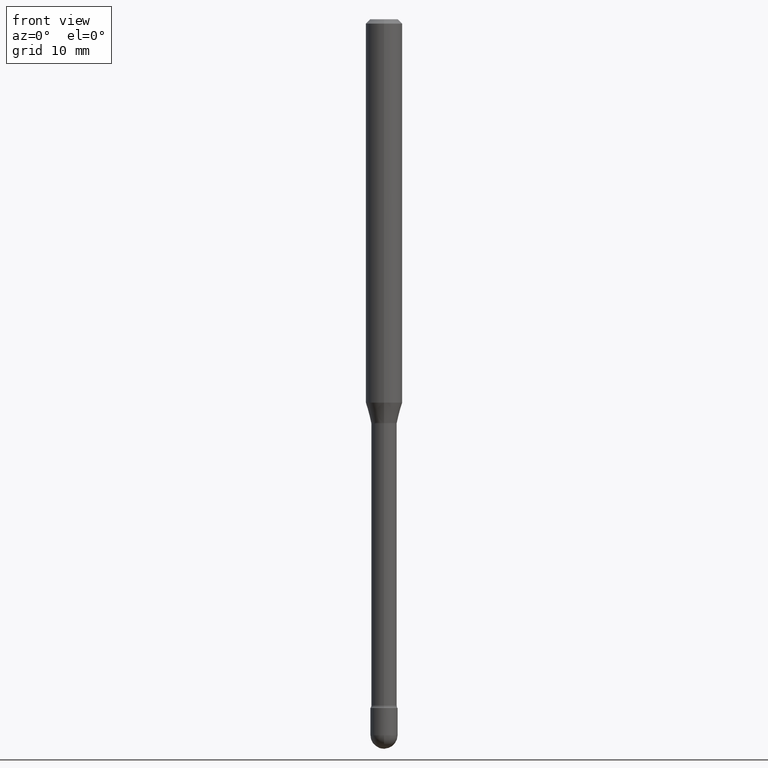
[diagram: clean part render]
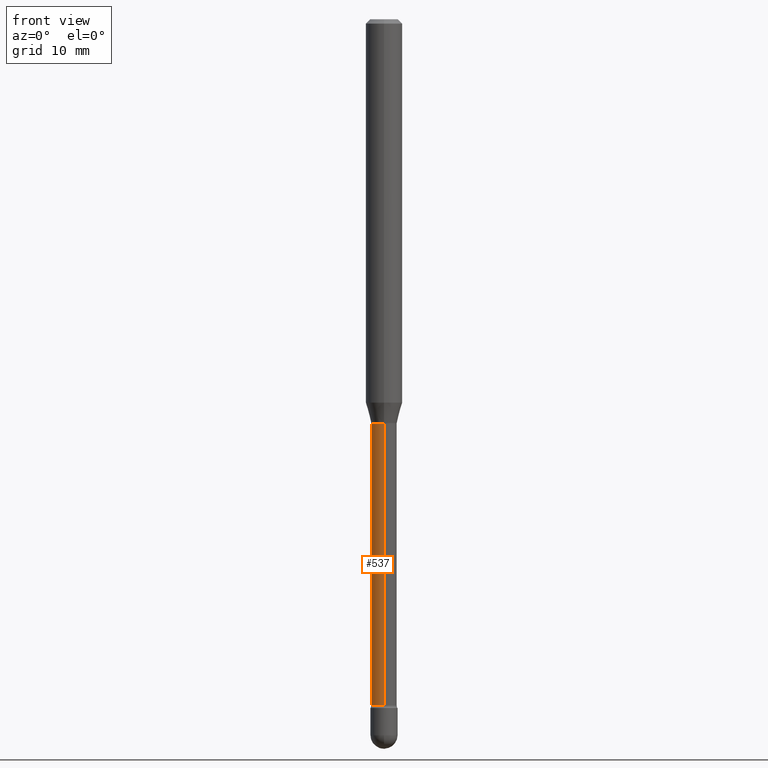
[diagram: same view with one face highlighted and labeled with its STEP entity id]
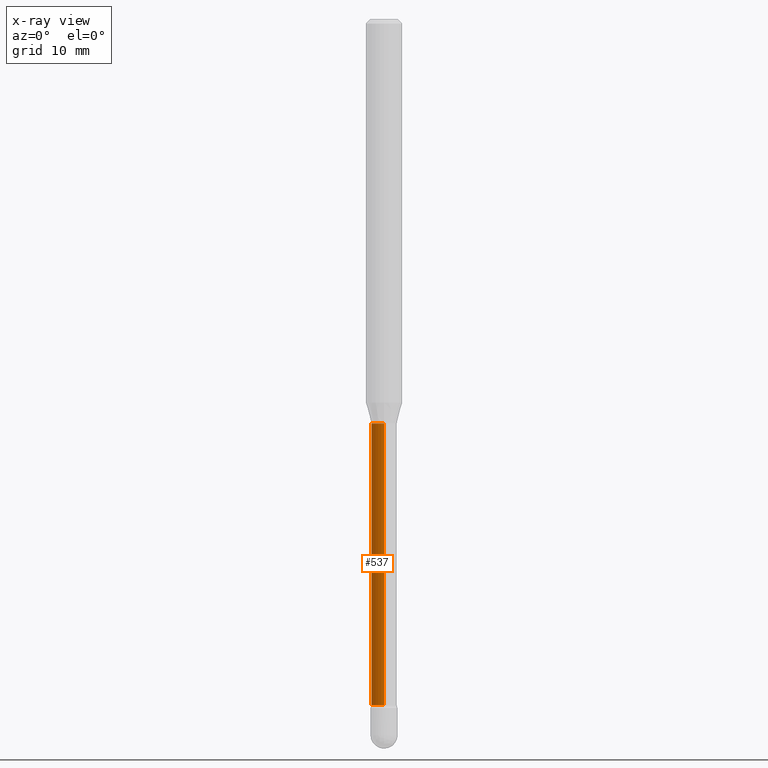
[diagram: x-ray of the same camera — body ghosted, the highlighted face saturated]
A machine part, front view. The second image highlights one B-rep face of the part: STEP entity #537.
The next image is the same camera in x-ray: the body ghosted, the highlighted face saturated — about 0% of this face is hidden behind the body in this view.
In plain terms, the highlighted cylindrical surface (edge-blend (fillet) strip) has radius 1.11 mm, axis along (-0, 0, 1).
Its self-contained STEP definition (entity closure, byte-faithful):
#15 = VECTOR ( 'NONE', #542, 39.37007874015748143 ) ;
#18 = CARTESIAN_POINT ( 'NONE',  ( 3.389350734963957439E-29, -4.839115666435715431E-15, -1.385974787463811086 ) ) ;
#27 = CARTESIAN_POINT ( 'NONE',  ( 3.105071755272217326E-16, 0.04369999999999515938, -1.385974787463811309 ) ) ;
#28 = LINE ( 'NONE', #289, #15 ) ;
#57 = DIRECTION ( 'NONE',  ( -2.445463485786862347E-29, 3.491488957956292582E-15, 1.000000000000000000 ) ) ;
#60 = CARTESIAN_POINT ( 'NONE',  ( -3.051554690148334643E-16, -0.04370000000000837798, -2.351273030308291379 ) ) ;
#68 = CARTESIAN_POINT ( 'NONE',  ( -3.051554690148904102E-16, -0.04370000000000008600, 6.306514663539364027E-16 ) ) ;
#99 = CYLINDRICAL_SURFACE ( 'NONE', #260, 0.04370000000000008600 ) ;
#100 = EDGE_CURVE ( 'NONE', #354, #478, #151, .T. ) ;
#122 = DIRECTION ( 'NONE',  ( -2.445463485786862347E-29, 3.491488957956292582E-15, 1.000000000000000000 ) ) ;
#125 = VECTOR ( 'NONE', #238, 39.37007874015748143 ) ;
#126 = VERTEX_POINT ( 'NONE', #203 ) ;
#131 = ORIENTED_EDGE ( 'NONE', *, *, #158, .F. ) ;
#151 = CIRCLE ( 'NONE', #224, 0.04370000000000000273 ) ;
#158 = EDGE_CURVE ( 'NONE', #126, #354, #28, .T. ) ;
#181 = ORIENTED_EDGE ( 'NONE', *, *, #252, .T. ) ;
#198 = CARTESIAN_POINT ( 'NONE',  ( 5.749952340734353438E-29, -8.209443822461831004E-15, -2.351273030308291823 ) ) ;
#201 = CIRCLE ( 'NONE', #544, 0.04370000000000016233 ) ;
#203 = CARTESIAN_POINT ( 'NONE',  ( 3.204547738278632229E-16, 0.04369999999999195361, -2.351273030308291823 ) ) ;
#214 = ORIENTED_EDGE ( 'NONE', *, *, #100, .F. ) ;
#224 = AXIS2_PLACEMENT_3D ( 'NONE', #18, #122, #503 ) ;
#227 = ORIENTED_EDGE ( 'NONE', *, *, #414, .T. ) ;
#238 = DIRECTION ( 'NONE',  ( -2.445463485786862627E-29, 3.491488957956292582E-15, 1.000000000000000000 ) ) ;
#252 = EDGE_CURVE ( 'NONE', #126, #405, #201, .T. ) ;
#260 = AXIS2_PLACEMENT_3D ( 'NONE', #526, #57, #480 ) ;
#289 = CARTESIAN_POINT ( 'NONE',  ( 3.105071755271643430E-16, 0.04370000000000008600, 3.254953314285557730E-16 ) ) ;
#351 = EDGE_LOOP ( 'NONE', ( #131, #181, #227, #214 ) ) ;
#354 = VERTEX_POINT ( 'NONE', #27 ) ;
#363 = DIRECTION ( 'NONE',  ( -6.982962677686265922E-15, -1.000000000000000000, 6.251368406554354907E-15 ) ) ;
#364 = DIRECTION ( 'NONE',  ( -2.445463485786862347E-29, 3.491488957956292582E-15, 1.000000000000000000 ) ) ;
#369 = LINE ( 'NONE', #68, #125 ) ;
#405 = VERTEX_POINT ( 'NONE', #60 ) ;
#414 = EDGE_CURVE ( 'NONE', #405, #478, #369, .T. ) ;
#416 = CARTESIAN_POINT ( 'NONE',  ( -3.051554690148559469E-16, -0.04370000000000483914, -1.385974787463810864 ) ) ;
#469 = FACE_OUTER_BOUND ( 'NONE', #351, .T. ) ;
#478 = VERTEX_POINT ( 'NONE', #416 ) ;
#480 = DIRECTION ( 'NONE',  ( -6.982962677686265922E-15, -1.000000000000000000, 3.491488957956293370E-15 ) ) ;
#503 = DIRECTION ( 'NONE',  ( -6.982962677686266711E-15, -1.000000000000000000, 6.251368406554377784E-15 ) ) ;
#526 = CARTESIAN_POINT ( 'NONE',  ( -1.169113584055446105E-44, 1.669184350826100908E-30, 4.780733988912460139E-16 ) ) ;
#537 = ADVANCED_FACE ( 'NONE', ( #469 ), #99, .T. ) ;
#542 = DIRECTION ( 'NONE',  ( -2.445463485786862627E-29, 3.491488957956292582E-15, 1.000000000000000000 ) ) ;
#544 = AXIS2_PLACEMENT_3D ( 'NONE', #198, #364, #363 ) ;